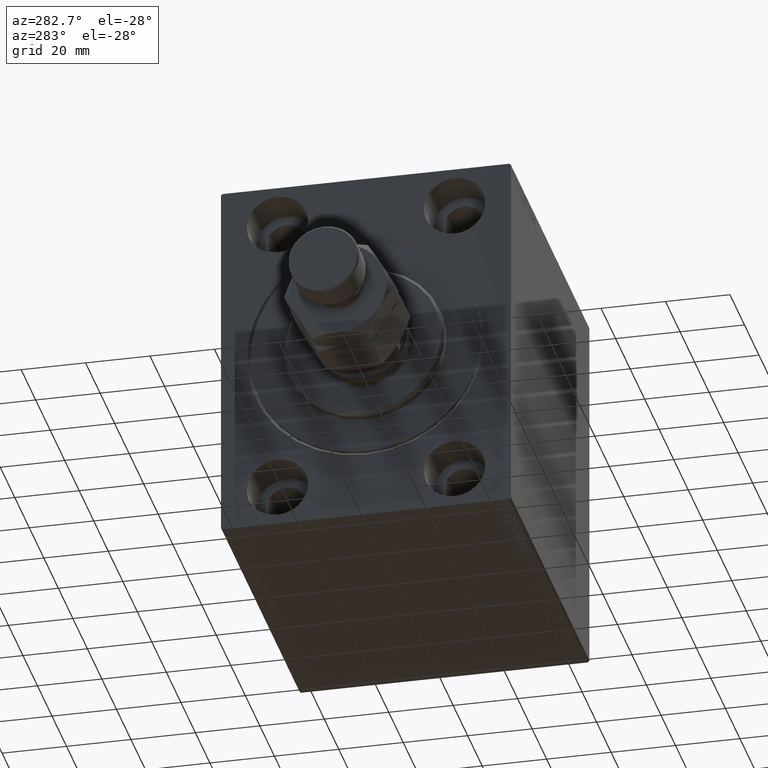
[diagram: clean part render]
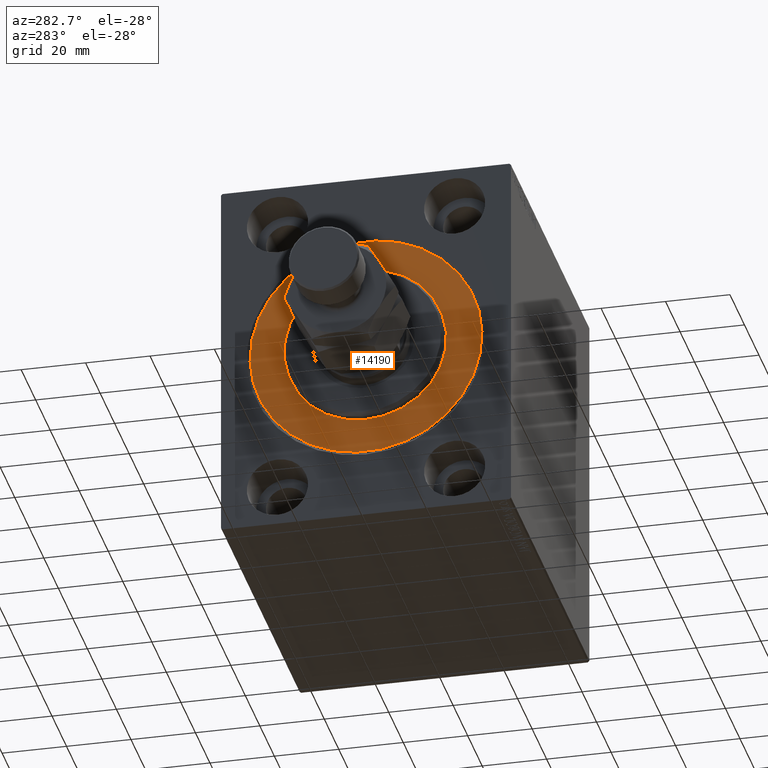
[diagram: same view with one face highlighted and labeled with its STEP entity id]
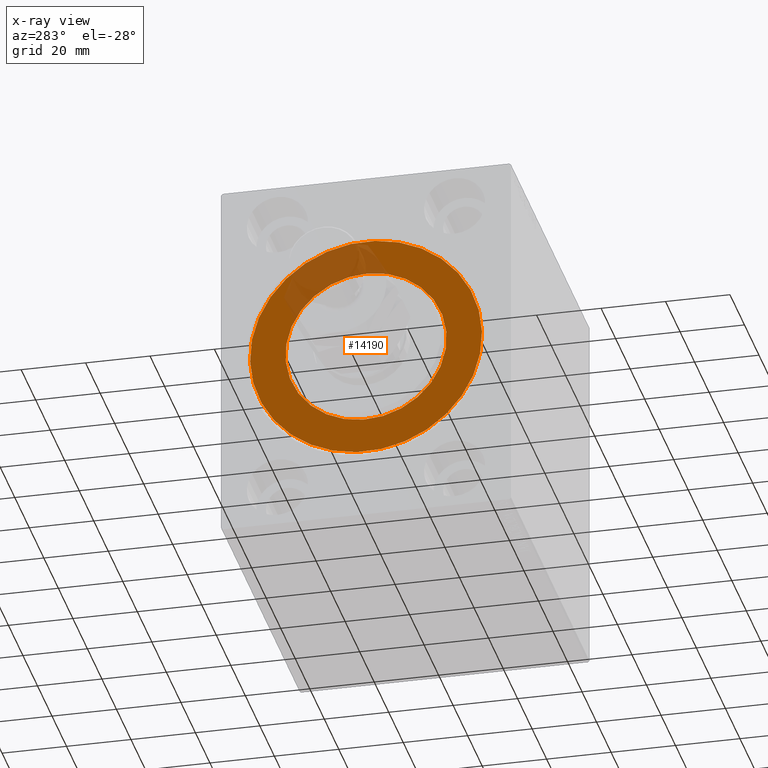
[diagram: x-ray of the same camera — body ghosted, the highlighted face saturated]
A machine part, auxiliary view. The second image highlights one B-rep face of the part: STEP entity #14190.
The next image is the same camera in x-ray: the body ghosted, the highlighted face saturated — about 16% of this face is hidden behind the body in this view.
In plain terms, the highlighted planar face has unit normal (1, 0, -0).
Its self-contained STEP definition (entity closure, byte-faithful):
#1163 = EDGE_LOOP ( 'NONE', ( #35421, #13413 ) ) ;
#1341 = ORIENTED_EDGE ( 'NONE', *, *, #31556, .F. ) ;
#1789 = EDGE_CURVE ( 'NONE', #37592, #20599, #39684, .T. ) ;
#2377 = DIRECTION ( 'NONE',  ( 0.000000000000000000, 0.000000000000000000, 1.000000000000000000 ) ) ;
#5865 = CIRCLE ( 'NONE', #22737, 36.00000000000000000 ) ;
#6097 = DIRECTION ( 'NONE',  ( 1.000000000000000000, -0.000000000000000000, 0.000000000000000000 ) ) ;
#7774 = VERTEX_POINT ( 'NONE', #30157 ) ;
#8779 = CARTESIAN_POINT ( 'NONE',  ( 0.000000000000000000, 3.061616997868383043E-15, -25.00000000000000000 ) ) ;
#8806 = FACE_OUTER_BOUND ( 'NONE', #12379, .T. ) ;
#9208 = VERTEX_POINT ( 'NONE', #33373 ) ;
#9293 = CARTESIAN_POINT ( 'NONE',  ( 0.000000000000000000, 0.000000000000000000, 0.000000000000000000 ) ) ;
#9607 = AXIS2_PLACEMENT_3D ( 'NONE', #9293, #23317, #2377 ) ;
#12144 = CARTESIAN_POINT ( 'NONE',  ( 0.000000000000000000, 0.000000000000000000, 0.000000000000000000 ) ) ;
#12379 = EDGE_LOOP ( 'NONE', ( #1341, #20765 ) ) ;
#13241 = CIRCLE ( 'NONE', #9607, 36.00000000000000000 ) ;
#13413 = ORIENTED_EDGE ( 'NONE', *, *, #1789, .F. ) ;
#14016 = CARTESIAN_POINT ( 'NONE',  ( 0.000000000000000000, 0.000000000000000000, 0.000000000000000000 ) ) ;
#14190 = ADVANCED_FACE ( 'NONE', ( #19823, #8806 ), #34084, .F. ) ;
#16653 = AXIS2_PLACEMENT_3D ( 'NONE', #26802, #6097, #30250 ) ;
#19823 = FACE_BOUND ( 'NONE', #1163, .T. ) ;
#20061 = CARTESIAN_POINT ( 'NONE',  ( 0.000000000000000000, 0.000000000000000000, 25.00000000000000000 ) ) ;
#20192 = EDGE_CURVE ( 'NONE', #20599, #37592, #35764, .T. ) ;
#20548 = AXIS2_PLACEMENT_3D ( 'NONE', #14016, #34529, #31294 ) ;
#20599 = VERTEX_POINT ( 'NONE', #20061 ) ;
#20765 = ORIENTED_EDGE ( 'NONE', *, *, #33698, .F. ) ;
#22503 = DIRECTION ( 'NONE',  ( 0.000000000000000000, 0.000000000000000000, 1.000000000000000000 ) ) ;
#22737 = AXIS2_PLACEMENT_3D ( 'NONE', #12144, #39997, #22503 ) ;
#23317 = DIRECTION ( 'NONE',  ( -1.000000000000000000, 0.000000000000000000, 0.000000000000000000 ) ) ;
#26802 = CARTESIAN_POINT ( 'NONE',  ( 0.000000000000000000, 0.000000000000000000, 0.000000000000000000 ) ) ;
#30157 = CARTESIAN_POINT ( 'NONE',  ( 0.000000000000000000, 4.408728476930470856E-15, 36.00000000000000000 ) ) ;
#30250 = DIRECTION ( 'NONE',  ( 0.000000000000000000, 0.000000000000000000, -1.000000000000000000 ) ) ;
#31294 = DIRECTION ( 'NONE',  ( 0.000000000000000000, 0.000000000000000000, -1.000000000000000000 ) ) ;
#31556 = EDGE_CURVE ( 'NONE', #9208, #7774, #5865, .T. ) ;
#33373 = CARTESIAN_POINT ( 'NONE',  ( 0.000000000000000000, 0.000000000000000000, -36.00000000000000000 ) ) ;
#33698 = EDGE_CURVE ( 'NONE', #7774, #9208, #13241, .T. ) ;
#33858 = DIRECTION ( 'NONE',  ( 0.000000000000000000, 0.000000000000000000, 1.000000000000000000 ) ) ;
#34084 = PLANE ( 'NONE',  #41490 ) ;
#34529 = DIRECTION ( 'NONE',  ( 1.000000000000000000, -0.000000000000000000, 0.000000000000000000 ) ) ;
#35421 = ORIENTED_EDGE ( 'NONE', *, *, #20192, .F. ) ;
#35764 = CIRCLE ( 'NONE', #16653, 25.00000000000000000 ) ;
#37092 = CARTESIAN_POINT ( 'NONE',  ( 0.000000000000000000, 0.000000000000000000, 0.000000000000000000 ) ) ;
#37323 = DIRECTION ( 'NONE',  ( -1.000000000000000000, 0.000000000000000000, 0.000000000000000000 ) ) ;
#37592 = VERTEX_POINT ( 'NONE', #8779 ) ;
#39684 = CIRCLE ( 'NONE', #20548, 25.00000000000000000 ) ;
#39997 = DIRECTION ( 'NONE',  ( -1.000000000000000000, 0.000000000000000000, 0.000000000000000000 ) ) ;
#41490 = AXIS2_PLACEMENT_3D ( 'NONE', #37092, #37323, #33858 ) ;